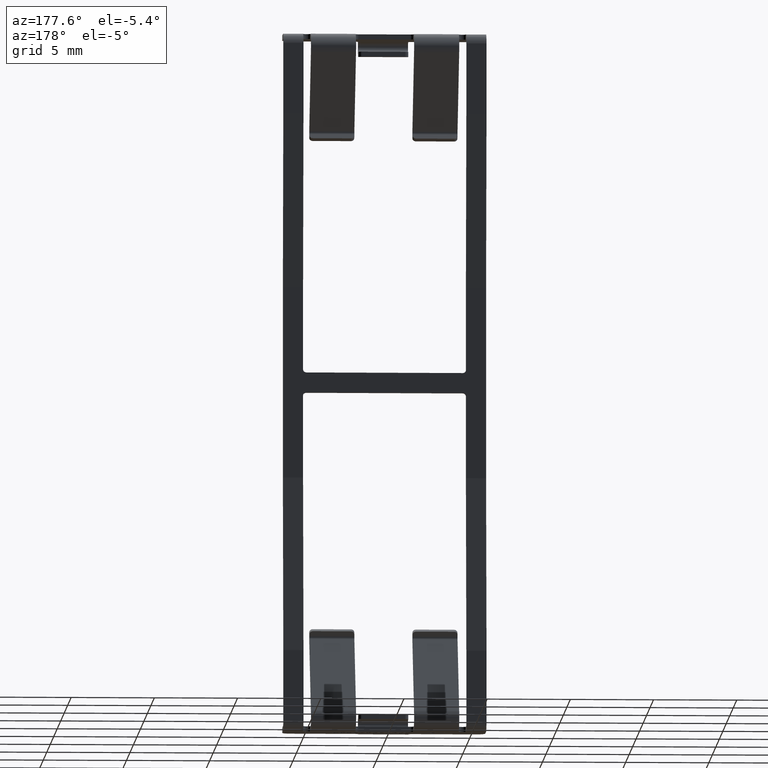
[diagram: clean part render]
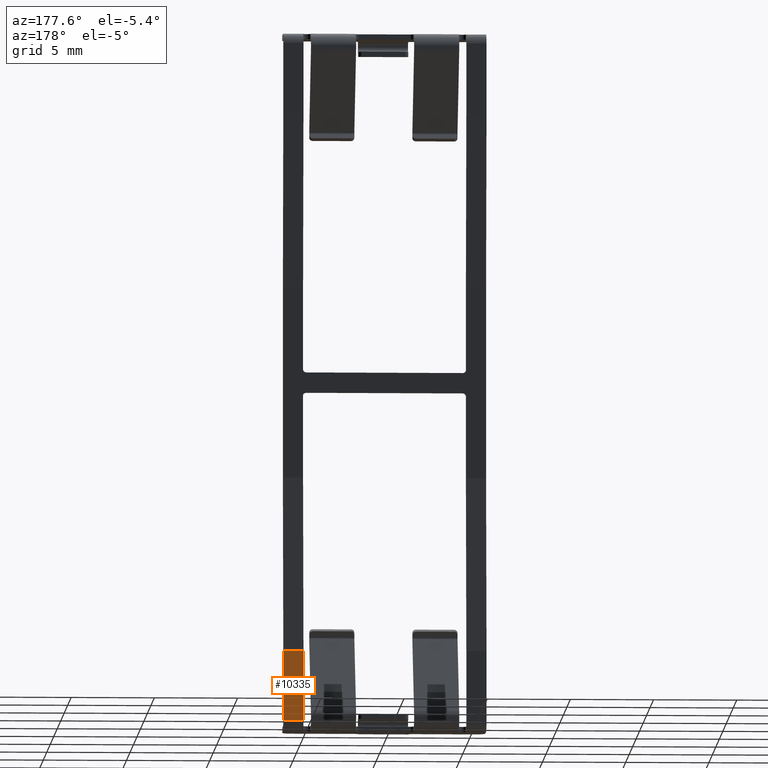
[diagram: same view with one face highlighted and labeled with its STEP entity id]
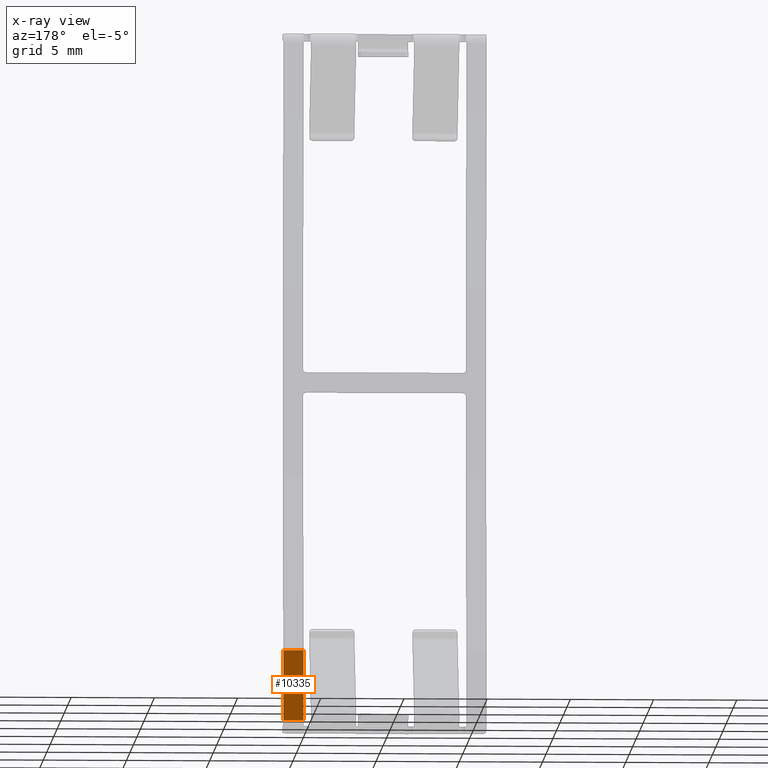
[diagram: x-ray of the same camera — body ghosted, the highlighted face saturated]
A machine part, auxiliary view. The second image highlights one B-rep face of the part: STEP entity #10335.
The next image is the same camera in x-ray: the body ghosted, the highlighted face saturated — about 0% of this face is hidden behind the body in this view.
In plain terms, the highlighted planar face has unit normal (0, -1, -0).
Its self-contained STEP definition (entity closure, byte-faithful):
#845 = ORIENTED_EDGE ( 'NONE', *, *, #7205, .T. ) ;
#945 = VERTEX_POINT ( 'NONE', #5381 ) ;
#1339 = VERTEX_POINT ( 'NONE', #5049 ) ;
#2106 = EDGE_CURVE ( 'NONE', #945, #10765, #2824, .T. ) ;
#2506 = DIRECTION ( 'NONE',  ( 0.0000000000000000000, -4.371503159461551906E-16, 1.000000000000000000 ) ) ;
#2556 = VECTOR ( 'NONE', #4195, 1000.000000000000000 ) ;
#2617 = CARTESIAN_POINT ( 'NONE',  ( 6.099999999999999645, 2.850000000000021849, -37.24999999999998579 ) ) ;
#2824 = LINE ( 'NONE', #8596, #2556 ) ;
#2945 = EDGE_LOOP ( 'NONE', ( #3670, #845, #4630, #3321 ) ) ;
#3321 = ORIENTED_EDGE ( 'NONE', *, *, #4671, .F. ) ;
#3670 = ORIENTED_EDGE ( 'NONE', *, *, #2106, .T. ) ;
#3809 = VECTOR ( 'NONE', #7036, 1000.000000000000000 ) ;
#4195 = DIRECTION ( 'NONE',  ( -1.000000000000000000, 0.0000000000000000000, 0.0000000000000000000 ) ) ;
#4376 = PLANE ( 'NONE',  #7286 ) ;
#4630 = ORIENTED_EDGE ( 'NONE', *, *, #6445, .F. ) ;
#4671 = EDGE_CURVE ( 'NONE', #945, #1339, #7370, .T. ) ;
#5049 = CARTESIAN_POINT ( 'NONE',  ( 6.099999999999999645, 2.850000000000019185, -37.24999999999998579 ) ) ;
#5261 = DIRECTION ( 'NONE',  ( 0.0000000000000000000, 1.387778780781445059E-17, -1.000000000000000000 ) ) ;
#5381 = CARTESIAN_POINT ( 'NONE',  ( 6.099999999999999645, 2.850000000000021849, -41.44999999999998863 ) ) ;
#5534 = FACE_OUTER_BOUND ( 'NONE', #2945, .T. ) ;
#5556 = VECTOR ( 'NONE', #2506, 1000.000000000000000 ) ;
#5650 = VECTOR ( 'NONE', #9342, 1000.000000000000000 ) ;
#6220 = CARTESIAN_POINT ( 'NONE',  ( 6.099999999999999645, 2.850000000000021849, -37.24999999999998579 ) ) ;
#6406 = LINE ( 'NONE', #10186, #5556 ) ;
#6445 = EDGE_CURVE ( 'NONE', #1339, #9793, #8013, .T. ) ;
#7002 = DIRECTION ( 'NONE',  ( 0.0000000000000000000, -1.000000000000000000, -1.387778780781445059E-17 ) ) ;
#7036 = DIRECTION ( 'NONE',  ( 0.0000000000000000000, -1.387778780781445059E-17, 1.000000000000000000 ) ) ;
#7205 = EDGE_CURVE ( 'NONE', #10765, #9793, #6406, .T. ) ;
#7286 = AXIS2_PLACEMENT_3D ( 'NONE', #2617, #7002, #5261 ) ;
#7370 = LINE ( 'NONE', #6220, #3809 ) ;
#7584 = CARTESIAN_POINT ( 'NONE',  ( 6.099999999999999645, 2.850000000000020961, -37.24999999999998579 ) ) ;
#8013 = LINE ( 'NONE', #7584, #5650 ) ;
#8596 = CARTESIAN_POINT ( 'NONE',  ( 6.099999999999999645, 2.850000000000021849, -41.44999999999998863 ) ) ;
#8837 = CARTESIAN_POINT ( 'NONE',  ( 4.900000000000001243, 2.850000000000020961, -37.24999999999998579 ) ) ;
#9342 = DIRECTION ( 'NONE',  ( -1.000000000000000000, 0.0000000000000000000, 0.0000000000000000000 ) ) ;
#9793 = VERTEX_POINT ( 'NONE', #8837 ) ;
#10186 = CARTESIAN_POINT ( 'NONE',  ( 4.899999999999999467, 2.850000000000023626, -41.44999999999998863 ) ) ;
#10309 = CARTESIAN_POINT ( 'NONE',  ( 4.899999999999999467, 2.850000000000017408, -41.44999999999998863 ) ) ;
#10335 = ADVANCED_FACE ( 'NONE', ( #5534 ), #4376, .F. ) ;
#10765 = VERTEX_POINT ( 'NONE', #10309 ) ;